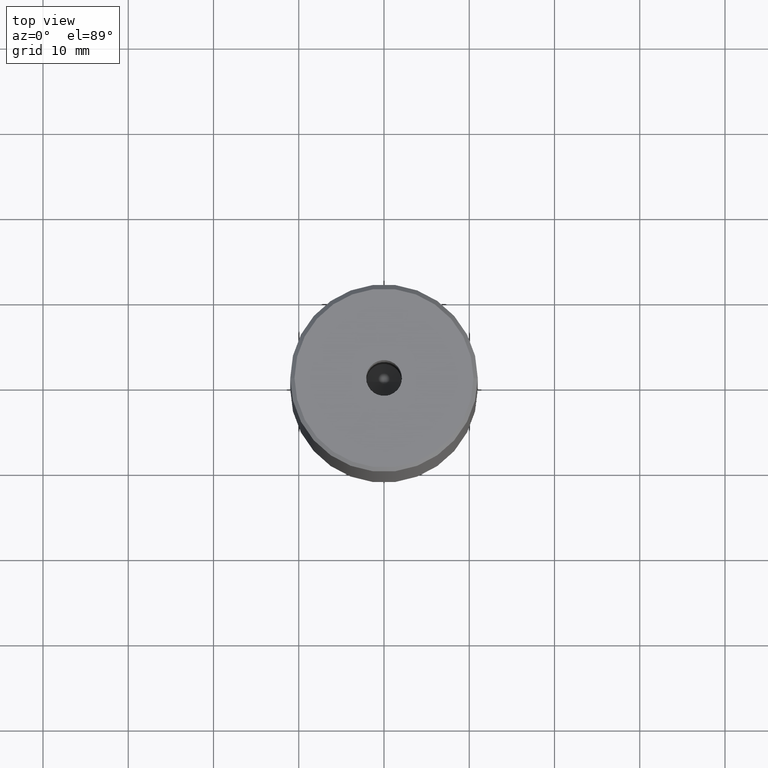
[diagram: clean part render]
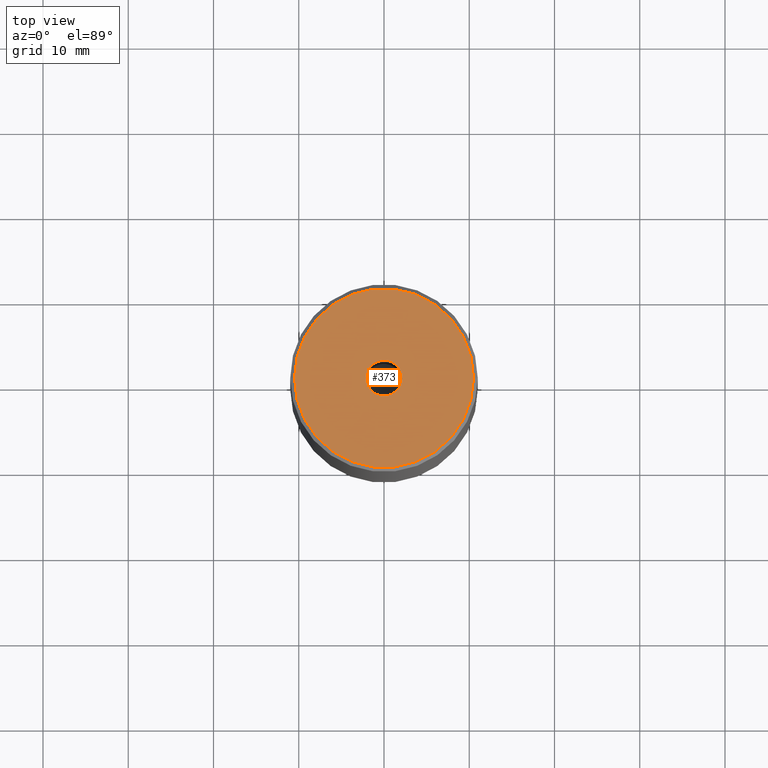
[diagram: same view with one face highlighted and labeled with its STEP entity id]
A machine part, top view. The second image highlights one B-rep face of the part: STEP entity #373.
In plain terms, the highlighted planar face has unit normal (0, -0, 1).
Its self-contained STEP definition (entity closure, byte-faithful):
#11 = ORIENTED_EDGE ( 'NONE', *, *, #204, .F. ) ;
#12 = CARTESIAN_POINT ( 'NONE',  ( 2.099999999999998757, 0.000000000000000000, -1.990051048614449116E-16 ) ) ;
#31 = CIRCLE ( 'NONE', #217, 2.099999999999998757 ) ;
#34 = CARTESIAN_POINT ( 'NONE',  ( 0.000000000000000000, 0.000000000000000000, 0.000000000000000000 ) ) ;
#56 = DIRECTION ( 'NONE',  ( 1.000000000000000000, 0.000000000000000000, 0.000000000000000000 ) ) ;
#58 = DIRECTION ( 'NONE',  ( -0.000000000000000000, -0.000000000000000000, 1.000000000000000000 ) ) ;
#69 = AXIS2_PLACEMENT_3D ( 'NONE', #463, #546, #314 ) ;
#105 = CARTESIAN_POINT ( 'NONE',  ( 0.000000000000000000, 0.000000000000000000, 0.000000000000000000 ) ) ;
#127 = DIRECTION ( 'NONE',  ( 1.000000000000000000, 0.000000000000000000, 0.000000000000000000 ) ) ;
#133 = EDGE_LOOP ( 'NONE', ( #401, #11 ) ) ;
#136 = FACE_OUTER_BOUND ( 'NONE', #375, .T. ) ;
#152 = VERTEX_POINT ( 'NONE', #228 ) ;
#166 = DIRECTION ( 'NONE',  ( -0.000000000000000000, -0.000000000000000000, 1.000000000000000000 ) ) ;
#183 = CIRCLE ( 'NONE', #582, 10.50000000000000178 ) ;
#192 = CIRCLE ( 'NONE', #573, 2.099999999999998757 ) ;
#204 = EDGE_CURVE ( 'NONE', #377, #245, #31, .T. ) ;
#210 = DIRECTION ( 'NONE',  ( -0.000000000000000000, -0.000000000000000000, 1.000000000000000000 ) ) ;
#214 = CARTESIAN_POINT ( 'NONE',  ( 10.50000000000000178, 1.316495309083404815E-15, 0.000000000000000000 ) ) ;
#217 = AXIS2_PLACEMENT_3D ( 'NONE', #576, #166, #127 ) ;
#228 = CARTESIAN_POINT ( 'NONE',  ( -10.50000000000000178, 0.000000000000000000, 0.000000000000000000 ) ) ;
#245 = VERTEX_POINT ( 'NONE', #12 ) ;
#268 = DIRECTION ( 'NONE',  ( 1.000000000000000000, 0.000000000000000000, 0.000000000000000000 ) ) ;
#272 = DIRECTION ( 'NONE',  ( -0.000000000000000000, -0.000000000000000000, 1.000000000000000000 ) ) ;
#314 = DIRECTION ( 'NONE',  ( 1.000000000000000000, 0.000000000000000000, 0.000000000000000000 ) ) ;
#320 = EDGE_CURVE ( 'NONE', #245, #377, #192, .T. ) ;
#351 = PLANE ( 'NONE',  #69 ) ;
#371 = AXIS2_PLACEMENT_3D ( 'NONE', #105, #58, #56 ) ;
#373 = ADVANCED_FACE ( 'NONE', ( #510, #136 ), #351, .T. ) ;
#375 = EDGE_LOOP ( 'NONE', ( #473, #517 ) ) ;
#377 = VERTEX_POINT ( 'NONE', #504 ) ;
#390 = EDGE_CURVE ( 'NONE', #521, #152, #530, .T. ) ;
#393 = DIRECTION ( 'NONE',  ( 1.000000000000000000, 0.000000000000000000, 0.000000000000000000 ) ) ;
#397 = CARTESIAN_POINT ( 'NONE',  ( 0.000000000000000000, 0.000000000000000000, -1.990051048614449116E-16 ) ) ;
#401 = ORIENTED_EDGE ( 'NONE', *, *, #320, .F. ) ;
#463 = CARTESIAN_POINT ( 'NONE',  ( 0.000000000000000000, 0.000000000000000000, 0.000000000000000000 ) ) ;
#473 = ORIENTED_EDGE ( 'NONE', *, *, #508, .T. ) ;
#504 = CARTESIAN_POINT ( 'NONE',  ( -2.099999999999998757, 2.571758278209440478E-16, -1.990051048614449116E-16 ) ) ;
#508 = EDGE_CURVE ( 'NONE', #152, #521, #183, .T. ) ;
#510 = FACE_BOUND ( 'NONE', #133, .T. ) ;
#517 = ORIENTED_EDGE ( 'NONE', *, *, #390, .T. ) ;
#521 = VERTEX_POINT ( 'NONE', #214 ) ;
#530 = CIRCLE ( 'NONE', #371, 10.50000000000000178 ) ;
#546 = DIRECTION ( 'NONE',  ( 0.000000000000000000, -0.000000000000000000, 1.000000000000000000 ) ) ;
#573 = AXIS2_PLACEMENT_3D ( 'NONE', #397, #272, #268 ) ;
#576 = CARTESIAN_POINT ( 'NONE',  ( 0.000000000000000000, 0.000000000000000000, -1.990051048614449116E-16 ) ) ;
#582 = AXIS2_PLACEMENT_3D ( 'NONE', #34, #210, #393 ) ;